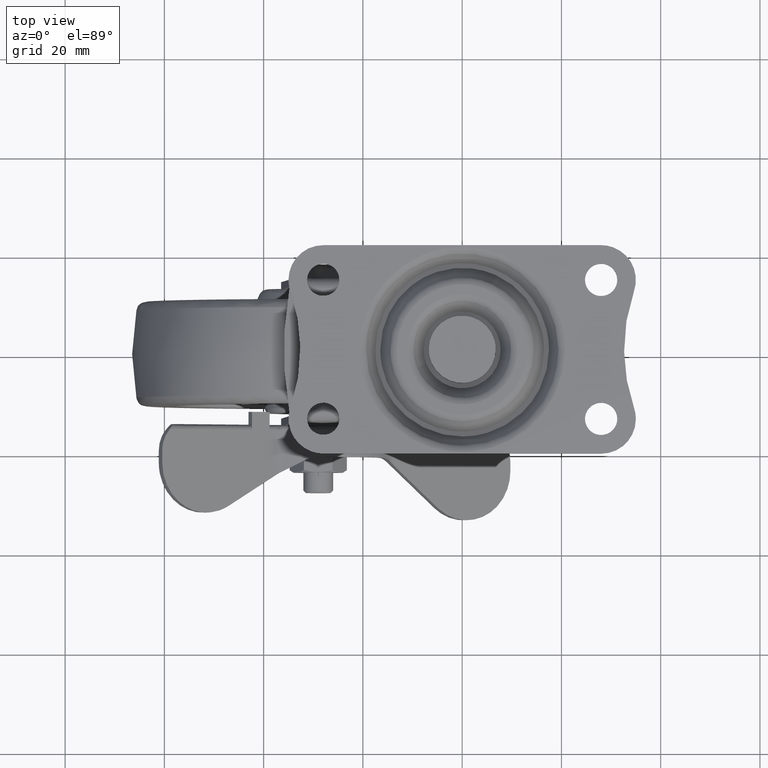
[diagram: clean part render]
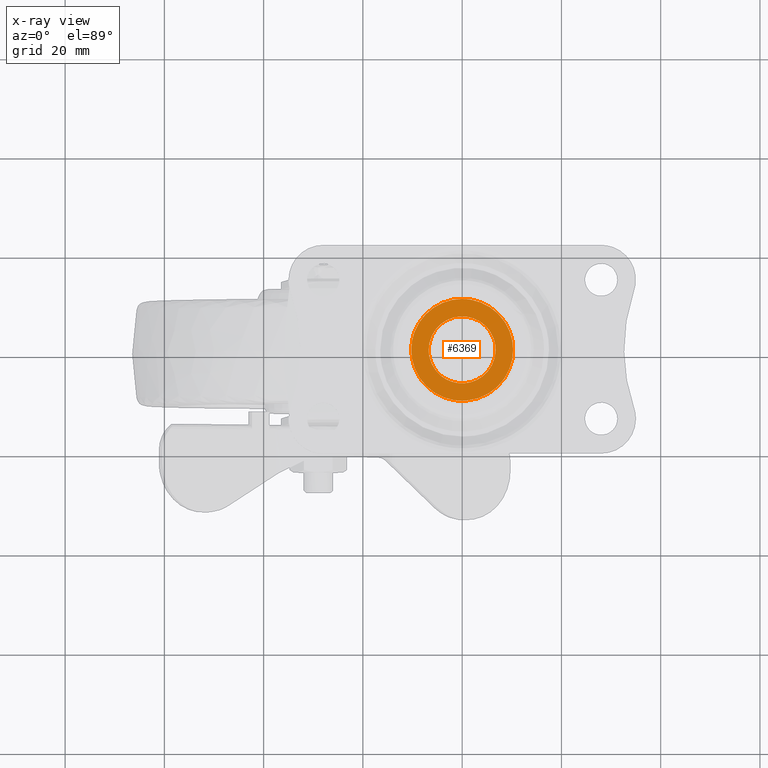
[diagram: x-ray — body ghosted, one internal face saturated and labeled with its STEP entity id]
A machine part, top view, then the same camera in x-ray: the body is ghosted and one INTERNAL B-rep face — a face not visible from any outside direction — is saturated and labeled: STEP entity #6369.
In plain terms, the highlighted face is a freeform B-spline surface patch.
Its self-contained STEP definition (entity closure, byte-faithful):
#130=CARTESIAN_POINT('',(-4.201968514429733,-5.282609260933048,-4.899998800000031));
#131=VERTEX_POINT('',#130);
#137=CARTESIAN_POINT('',(6.750000000000000,0.0,-4.899998800000031));
#138=VERTEX_POINT('',#137);
#139=CARTESIAN_POINT('',(6.750000000000000,0.0,-4.899998800000031));
#140=CARTESIAN_POINT('',(6.750000000000000,-6.750000000000000,-4.899998800000030));
#141=CARTESIAN_POINT('',(0.0,-6.750000000000000,-4.899998800000031));
#142=CARTESIAN_POINT('',(-2.357201738819638,-6.750000000000000,-4.899998800000031));
#143=CARTESIAN_POINT('',(-4.201968514429733,-5.282609260933048,-4.899998800000032));
#151=(BOUNDED_CURVE()B_SPLINE_CURVE(2,(#139,#140,#141,#142,#143),.UNSPECIFIED.,.F.,.U.)B_SPLINE_CURVE_WITH_KNOTS((3,2,3),(0.0,0.250000000000000,0.357863726008972),.UNSPECIFIED.)CURVE()GEOMETRIC_REPRESENTATION_ITEM()RATIONAL_B_SPLINE_CURVE((1.0,0.707106781186548,1.0,0.873629784384080,0.856305667271282))REPRESENTATION_ITEM(''));
#152=EDGE_CURVE('',#138,#131,#151,.T.);
#154=CARTESIAN_POINT('',(-5.282609124759592,4.201968685623922,-4.899998800000031));
#155=VERTEX_POINT('',#154);
#156=CARTESIAN_POINT('',(-5.282609124759592,4.201968685623922,-4.899998800000031));
#157=CARTESIAN_POINT('',(-3.255817526116873,6.750000000000001,-4.899998800000031));
#158=CARTESIAN_POINT('',(0.0,6.750000000000000,-4.899998800000031));
#159=CARTESIAN_POINT('',(6.750000000000000,6.750000000000000,-4.899998800000030));
#160=CARTESIAN_POINT('',(6.750000000000000,0.0,-4.899998800000031));
#168=(BOUNDED_CURVE()B_SPLINE_CURVE(2,(#156,#157,#158,#159,#160),.UNSPECIFIED.,.F.,.U.)B_SPLINE_CURVE_WITH_KNOTS((3,2,3),(0.607863730914593,0.750000000000000,1.0),.UNSPECIFIED.)CURVE()GEOMETRIC_REPRESENTATION_ITEM()RATIONAL_B_SPLINE_CURVE((0.856305665695487,0.833477002549761,1.0,0.707106781186548,1.0))REPRESENTATION_ITEM(''));
#169=EDGE_CURVE('',#155,#138,#168,.T.);
#213=CARTESIAN_POINT('',(-6.750000000000000,0.0,-4.899998800000031));
#214=VERTEX_POINT('',#213);
#215=CARTESIAN_POINT('',(-6.750000000000000,0.0,-4.899998800000031));
#216=CARTESIAN_POINT('',(-6.750000000000000,2.357201861531892,-4.899998800000031));
#217=CARTESIAN_POINT('',(-5.282609124759592,4.201968685623922,-4.899998800000031));
#225=(BOUNDED_CURVE()B_SPLINE_CURVE(2,(#215,#216,#217),.UNSPECIFIED.,.F.,.U.)B_SPLINE_CURVE_WITH_KNOTS((3,3),(0.500000000000000,0.607863730914593),.UNSPECIFIED.)CURVE()GEOMETRIC_REPRESENTATION_ITEM()RATIONAL_B_SPLINE_CURVE((1.0,0.873629778636787,0.856305665695487))REPRESENTATION_ITEM(''));
#226=EDGE_CURVE('',#214,#155,#225,.T.);
#228=CARTESIAN_POINT('',(-4.201968514429733,-5.282609260933048,-4.899998800000032));
#229=CARTESIAN_POINT('',(-6.750000000000000,-3.255817660937253,-4.899998800000030));
#230=CARTESIAN_POINT('',(-6.750000000000000,0.0,-4.899998800000031));
#238=(BOUNDED_CURVE()B_SPLINE_CURVE(2,(#228,#229,#230),.UNSPECIFIED.,.F.,.U.)B_SPLINE_CURVE_WITH_KNOTS((3,3),(0.357863726008972,0.500000000000000),.UNSPECIFIED.)CURVE()GEOMETRIC_REPRESENTATION_ITEM()RATIONAL_B_SPLINE_CURVE((0.856305667271282,0.833476996802468,1.0))REPRESENTATION_ITEM(''));
#239=EDGE_CURVE('',#131,#214,#238,.T.);
#1738=CARTESIAN_POINT('',(-10.264692522078979,0.0,-4.899998799999991));
#1739=VERTEX_POINT('',#1738);
#1740=CARTESIAN_POINT('',(0.715790386305393,-10.239704912973149,-4.899998800910564));
#1741=VERTEX_POINT('',#1740);
#1742=CARTESIAN_POINT('',(-10.264692522078979,0.0,-4.899998799999991));
#1743=CARTESIAN_POINT('',(-10.264692522078979,-10.264692522078979,-4.899998799999991));
#1744=CARTESIAN_POINT('',(0.0,-10.264692522078979,-4.899998799999991));
#1745=CARTESIAN_POINT('',(0.358331340960488,-10.264692522078983,-4.899998799999993));
#1746=CARTESIAN_POINT('',(0.715790386305393,-10.239704912973147,-4.899998800910564));
#1754=(BOUNDED_CURVE()B_SPLINE_CURVE(2,(#1742,#1743,#1744,#1745,#1746),.UNSPECIFIED.,.F.,.U.)B_SPLINE_CURVE_WITH_KNOTS((3,2,3),(0.0,0.250000000000000,0.262166313474536),.UNSPECIFIED.)CURVE()GEOMETRIC_REPRESENTATION_ITEM()RATIONAL_B_SPLINE_CURVE((1.0,0.707106781186548,1.0,0.985746277141399,0.972879876366612))REPRESENTATION_ITEM(''));
#1755=EDGE_CURVE('',#1739,#1741,#1754,.T.);
#1757=CARTESIAN_POINT('',(-0.128986535646755,10.263882065208771,-4.899998800207642));
#1758=VERTEX_POINT('',#1757);
#1759=CARTESIAN_POINT('',(-0.128986535646755,10.263882065208771,-4.899998800207642));
#1760=CARTESIAN_POINT('',(-10.264692522078981,10.136506322338565,-4.899998799999991));
#1761=CARTESIAN_POINT('',(-10.264692522078979,0.0,-4.899998799999991));
#1769=(BOUNDED_CURVE()B_SPLINE_CURVE(2,(#1759,#1760,#1761),.UNSPECIFIED.,.F.,.U.)B_SPLINE_CURVE_WITH_KNOTS((3,3),(0.752215704079049,1.0),.UNSPECIFIED.)CURVE()GEOMETRIC_REPRESENTATION_ITEM()RATIONAL_B_SPLINE_CURVE((0.994854295642222,0.709702639985151,1.0))REPRESENTATION_ITEM(''));
#1770=EDGE_CURVE('',#1758,#1739,#1769,.T.);
#1872=CARTESIAN_POINT('',(10.264692522078979,0.0,-4.899998799999991));
#1873=VERTEX_POINT('',#1872);
#1874=CARTESIAN_POINT('',(0.715790386305393,-10.239704912973147,-4.899998800910564));
#1875=CARTESIAN_POINT('',(10.264692522078979,-9.572204002161215,-4.899998799999991));
#1876=CARTESIAN_POINT('',(10.264692522078979,0.0,-4.899998799999991));
#1884=(BOUNDED_CURVE()B_SPLINE_CURVE(2,(#1874,#1875,#1876),.UNSPECIFIED.,.F.,.U.)B_SPLINE_CURVE_WITH_KNOTS((3,3),(0.262166313474536,0.500000000000000),.UNSPECIFIED.)CURVE()GEOMETRIC_REPRESENTATION_ITEM()RATIONAL_B_SPLINE_CURVE((0.972879876366612,0.721360504045149,1.0))REPRESENTATION_ITEM(''));
#1885=EDGE_CURVE('',#1741,#1873,#1884,.T.);
#1919=CARTESIAN_POINT('',(10.264692522078979,0.0,-4.899998799999991));
#1920=CARTESIAN_POINT('',(10.264692522078979,10.264692522078979,-4.899998799999991));
#1921=CARTESIAN_POINT('',(0.0,10.264692522078979,-4.899998799999991));
#1922=CARTESIAN_POINT('',(-0.064495813993235,10.264692522078978,-4.899998799999992));
#1923=CARTESIAN_POINT('',(-0.128986535646755,10.263882065208767,-4.899998800207642));
#1931=(BOUNDED_CURVE()B_SPLINE_CURVE(2,(#1919,#1920,#1921,#1922,#1923),.UNSPECIFIED.,.F.,.U.)B_SPLINE_CURVE_WITH_KNOTS((3,2,3),(0.500000000000000,0.750000000000000,0.752215704079048),.UNSPECIFIED.)CURVE()GEOMETRIC_REPRESENTATION_ITEM()RATIONAL_B_SPLINE_CURVE((1.0,0.707106781186548,1.0,0.997404141201398,0.994854295642225))REPRESENTATION_ITEM(''));
#1932=EDGE_CURVE('',#1873,#1758,#1931,.T.);
#6352=CARTESIAN_POINT('',(-11.290135072529560,-11.288865920867091,-4.899998799999991));
#6353=CARTESIAN_POINT('',(11.290135806717579,-11.288865920867091,-4.899998799999991));
#6354=CARTESIAN_POINT('',(-11.290135072529560,11.289224877034190,-4.899998799999991));
#6355=CARTESIAN_POINT('',(11.290135806717579,11.289224877034190,-4.899998799999991));
#6356=B_SPLINE_SURFACE_WITH_KNOTS('',1,1,((#6352,#6354),(#6353,#6355)),.UNSPECIFIED.,.F.,.F.,.U.,(2,2),(2,2),(0.0,22.580270879247141),(0.0,22.578090797901279),.UNSPECIFIED.);
#6357=ORIENTED_EDGE('',*,*,#1755,.T.);
#6358=ORIENTED_EDGE('',*,*,#1885,.T.);
#6359=ORIENTED_EDGE('',*,*,#1932,.T.);
#6360=ORIENTED_EDGE('',*,*,#1770,.T.);
#6361=EDGE_LOOP('',(#6357,#6358,#6359,#6360));
#6362=FACE_OUTER_BOUND('',#6361,.T.);
#6363=ORIENTED_EDGE('',*,*,#152,.T.);
#6364=ORIENTED_EDGE('',*,*,#239,.T.);
#6365=ORIENTED_EDGE('',*,*,#226,.T.);
#6366=ORIENTED_EDGE('',*,*,#169,.T.);
#6367=EDGE_LOOP('',(#6363,#6364,#6365,#6366));
#6368=FACE_BOUND('',#6367,.T.);
#6369=ADVANCED_FACE('',(#6362,#6368),#6356,.T.);